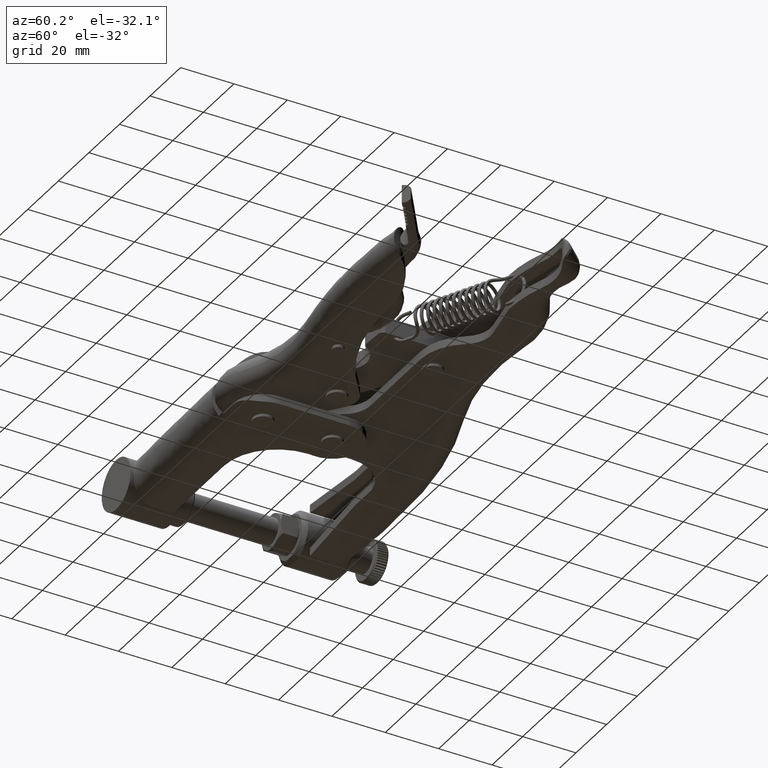
[diagram: clean part render]
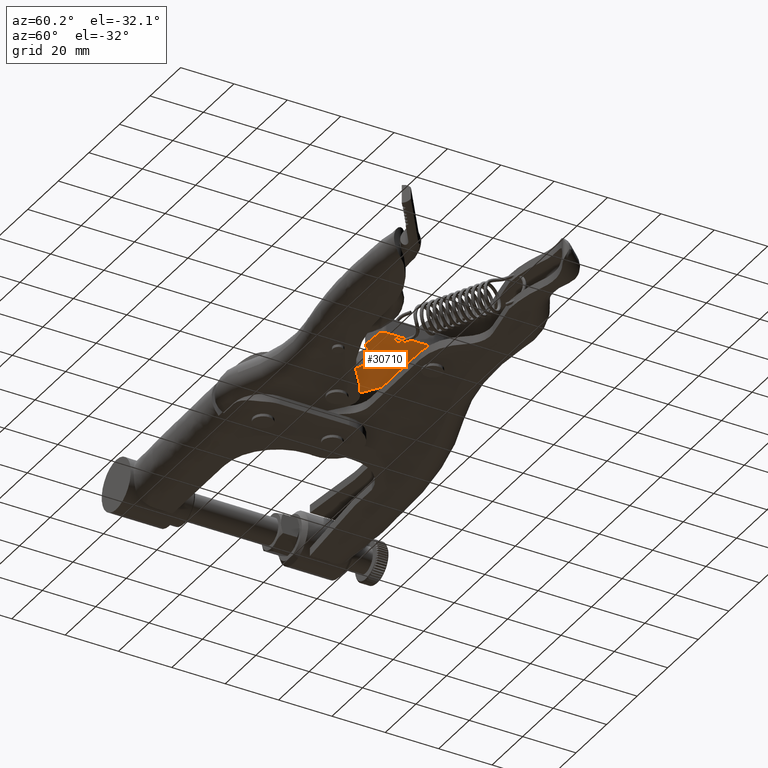
[diagram: same view with one face highlighted and labeled with its STEP entity id]
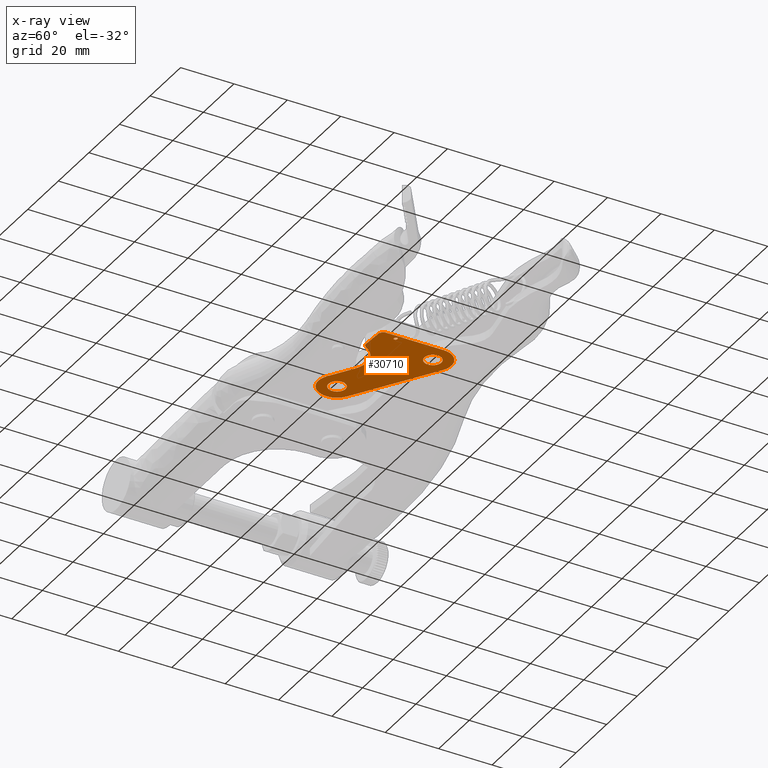
[diagram: x-ray of the same camera — body ghosted, the highlighted face saturated]
A machine part, auxiliary view. The second image highlights one B-rep face of the part: STEP entity #30710.
The next image is the same camera in x-ray: the body ghosted, the highlighted face saturated — about 0% of this face is hidden behind the body in this view.
In plain terms, the highlighted planar face has unit normal (0, -0, 1).
Its self-contained STEP definition (entity closure, byte-faithful):
#353 = EDGE_CURVE ( 'NONE', #10189, #1628, #16310, .T. ) ;
#512 = FACE_BOUND ( 'NONE', #18957, .T. ) ;
#554 = CARTESIAN_POINT ( 'NONE',  ( 47.74930561932976800, -14.73666896881992700, -2.999999999999997800 ) ) ;
#615 = EDGE_CURVE ( 'NONE', #1628, #26622, #7031, .T. ) ;
#737 = VERTEX_POINT ( 'NONE', #19636 ) ;
#1120 = EDGE_CURVE ( 'NONE', #4505, #14626, #11932, .T. ) ;
#1323 = CARTESIAN_POINT ( 'NONE',  ( 56.08803784128576100, -7.845352811508280200, -2.999999999999999100 ) ) ;
#1628 = VERTEX_POINT ( 'NONE', #29741 ) ;
#1668 = ORIENTED_EDGE ( 'NONE', *, *, #17580, .F. ) ;
#1924 = CARTESIAN_POINT ( 'NONE',  ( 55.69137039047979000, -7.406783459931114400, -2.999999999999998700 ) ) ;
#2299 = AXIS2_PLACEMENT_3D ( 'NONE', #19826, #5628, #22198 ) ;
#2435 = EDGE_LOOP ( 'NONE', ( #26360, #16759, #17741, #17951, #26833, #22366, #19683, #19156, #25405, #29442, #17783 ) ) ;
#2580 = EDGE_CURVE ( 'NONE', #23087, #10189, #18468, .T. ) ;
#2998 = LINE ( 'NONE', #10767, #14828 ) ;
#3656 = DIRECTION ( 'NONE',  ( -0.8400233805133321400, -0.5425502006182965100, 1.600337199513109700E-016 ) ) ;
#3696 = CARTESIAN_POINT ( 'NONE',  ( 56.04006666863585200, -8.108467644996125000, -2.999999999999999100 ) ) ;
#3907 = ORIENTED_EDGE ( 'NONE', *, *, #28201, .T. ) ;
#4215 = EDGE_LOOP ( 'NONE', ( #22375, #21752 ) ) ;
#4226 = CARTESIAN_POINT ( 'NONE',  ( 54.94183673234290700, -14.37767087287276400, -3.000000000000000000 ) ) ;
#4311 = CARTESIAN_POINT ( 'NONE',  ( 55.93099309033259900, -7.528070872549034400, -2.999999999999999600 ) ) ;
#4462 = CARTESIAN_POINT ( 'NONE',  ( 45.87903994977526900, -13.66926377039565900, -2.999999999999996900 ) ) ;
#4505 = VERTEX_POINT ( 'NONE', #12548 ) ;
#4561 = DIRECTION ( 'NONE',  ( -3.365464950932093500E-016, 2.261047999189759900E-016, -1.000000000000000000 ) ) ;
#4983 = VERTEX_POINT ( 'NONE', #6632 ) ;
#5628 = DIRECTION ( 'NONE',  ( 3.365464950932093500E-016, -2.261047999189759900E-016, 1.000000000000000000 ) ) ;
#6001 = CARTESIAN_POINT ( 'NONE',  ( 50.00000000000006400, 9.000000000000007100, -2.999999999999995600 ) ) ;
#6046 = CARTESIAN_POINT ( 'NONE',  ( 55.77525910671715800, -8.467977552843327900, -2.999999999999998200 ) ) ;
#6080 = VERTEX_POINT ( 'NONE', #29589 ) ;
#6205 = CIRCLE ( 'NONE', #2299, 3.200000000000001500 ) ;
#6567 = CARTESIAN_POINT ( 'NONE',  ( 54.64377548583110700, -8.264806347167434500, -2.999999999999997800 ) ) ;
#6632 = CARTESIAN_POINT ( 'NONE',  ( 56.94681464648077500, -12.37990965963003400, -3.000000000000000400 ) ) ;
#6664 = CARTESIAN_POINT ( 'NONE',  ( 56.03467431464443400, -7.673614474005279200, -2.999999999999998700 ) ) ;
#6789 = FACE_OUTER_BOUND ( 'NONE', #2435, .T. ) ;
#6980 = DIRECTION ( 'NONE',  ( 3.365464950932093500E-016, -2.261047999189759900E-016, 1.000000000000000000 ) ) ;
#7031 = CIRCLE ( 'NONE', #13992, 9.000000000000067500 ) ;
#7921 = CARTESIAN_POINT ( 'NONE',  ( 47.64960448671551800, -12.73915559360677100, -2.999999999999997300 ) ) ;
#8071 = CIRCLE ( 'NONE', #8201, 1.999999999999998900 ) ;
#8201 = AXIS2_PLACEMENT_3D ( 'NONE', #7921, #24513, #10302 ) ;
#8390 = DIRECTION ( 'NONE',  ( 1.000000000000000000, 0.0000000000000000000, -2.710505431213759600E-016 ) ) ;
#8434 = CARTESIAN_POINT ( 'NONE',  ( 55.27974950392076900, -8.669937496578327800, -2.999999999999998200 ) ) ;
#8488 = AXIS2_PLACEMENT_3D ( 'NONE', #22959, #8755, #25358 ) ;
#8755 = DIRECTION ( 'NONE',  ( 3.365464950932093500E-016, -2.261047999189759900E-016, 1.000000000000000000 ) ) ;
#8885 = ORIENTED_EDGE ( 'NONE', *, *, #1120, .F. ) ;
#8940 = CARTESIAN_POINT ( 'NONE',  ( 54.62636189608715400, -8.174883689408995100, -2.999999999999996900 ) ) ;
#9042 = DIRECTION ( 'NONE',  ( 0.002488638461392578300, 0.9999969033345096300, 2.252665571963090500E-016 ) ) ;
#9281 = DIRECTION ( 'NONE',  ( 3.365464950932093500E-016, -2.261047999189759900E-016, 1.000000000000000000 ) ) ;
#9581 = DIRECTION ( 'NONE',  ( -3.365464950932093500E-016, 2.261047999189759900E-016, -1.000000000000000000 ) ) ;
#9640 = CIRCLE ( 'NONE', #19291, 7.000000000000002700 ) ;
#10186 = VERTEX_POINT ( 'NONE', #21784 ) ;
#10189 = VERTEX_POINT ( 'NONE', #24174 ) ;
#10302 = DIRECTION ( 'NONE',  ( -0.8400233805133319200, -0.5425502006182967300, 2.168404344971010100E-016 ) ) ;
#10767 = CARTESIAN_POINT ( 'NONE',  ( 46.20214859567157400, 14.88016366359560600, -2.999999999999990700 ) ) ;
#10812 = CARTESIAN_POINT ( 'NONE',  ( 54.93089698204126100, -8.593366108244838500, -2.999999999999999100 ) ) ;
#11040 = B_SPLINE_CURVE_WITH_KNOTS ( 'NONE', 3,
 ( #13102, #15483, #1323, #17880, #3696, #20265, #6046, #22639, #8434, #25035, #10812, #27414, #13209, #29783 ),
 .UNSPECIFIED., .F., .F.,
 ( 4, 2, 2, 2, 2, 2, 4 ),
 ( 0.002103345937367963200, 0.002368459114890014900, 0.002633572292412067000, 0.003163798647456165700, 0.003694025002500264800, 0.003959138180022314000, 0.004224251357544363100 ),
 .UNSPECIFIED. ) ;
#11122 = DIRECTION ( 'NONE',  ( 3.365464950932093900E-016, -2.261047999189761400E-016, 1.000000000000000000 ) ) ;
#11135 = DIRECTION ( 'NONE',  ( 3.365464950932093500E-016, -2.261047999189759900E-016, 1.000000000000000000 ) ) ;
#11323 = CARTESIAN_POINT ( 'NONE',  ( 54.66082280025444400, -7.910384893900485700, -2.999999999999997800 ) ) ;
#11932 = B_SPLINE_CURVE_WITH_KNOTS ( 'NONE', 3,
 ( #23158, #6567, #8940, #25530, #11323, #27924, #13718, #30310, #16103, #1924, #18495, #4311, #20876, #6664 ),
 .UNSPECIFIED., .F., .F.,
 ( 4, 2, 2, 2, 2, 2, 4 ),
 ( 0.004224251357544363100, 0.004489551586989609300, 0.004754851816434856400, 0.005285452275325344500, 0.005816052734215833500, 0.006081352963661088400, 0.006346653193106342400 ),
 .UNSPECIFIED. ) ;
#11977 = AXIS2_PLACEMENT_3D ( 'NONE', #18743, #4561, #21126 ) ;
#12135 = VECTOR ( 'NONE', #30157, 1000.000000000000000 ) ;
#12548 = CARTESIAN_POINT ( 'NONE',  ( 54.68367584127175000, -8.345085758288986400, -2.999999999999998700 ) ) ;
#13102 = CARTESIAN_POINT ( 'NONE',  ( 56.03467431464443400, -7.673614474005279200, -2.999999999999998700 ) ) ;
#13209 = CARTESIAN_POINT ( 'NONE',  ( 54.72354806466653800, -8.425308567807617200, -2.999999999999999600 ) ) ;
#13552 = DIRECTION ( 'NONE',  ( -3.365464950932093500E-016, 2.261047999189759900E-016, -1.000000000000000000 ) ) ;
#13718 = CARTESIAN_POINT ( 'NONE',  ( 54.92561036455417400, -7.551364831308092100, -2.999999999999998200 ) ) ;
#13810 = DIRECTION ( 'NONE',  ( 3.365464950932093500E-016, -2.261047999189759900E-016, 1.000000000000000000 ) ) ;
#13840 = CIRCLE ( 'NONE', #8488, 3.200000000000001500 ) ;
#13992 = AXIS2_PLACEMENT_3D ( 'NONE', #23792, #9581, #26178 ) ;
#14079 = EDGE_CURVE ( 'NONE', #4983, #28029, #27210, .T. ) ;
#14191 = VERTEX_POINT ( 'NONE', #21276 ) ;
#14626 = VERTEX_POINT ( 'NONE', #17524 ) ;
#14774 = CIRCLE ( 'NONE', #11977, 2.000000000000002700 ) ;
#14828 = VECTOR ( 'NONE', #3656, 1000.000000000000000 ) ;
#15245 = CIRCLE ( 'NONE', #30557, 3.200000000000001500 ) ;
#15478 = CARTESIAN_POINT ( 'NONE',  ( 55.04652197242600000, -14.37244575792039900, -3.000000000000000000 ) ) ;
#15483 = CARTESIAN_POINT ( 'NONE',  ( 56.07406556243556400, -7.752869561865097100, -2.999999999999999100 ) ) ;
#15594 = VECTOR ( 'NONE', #25235, 1000.000000000000100 ) ;
#15686 = CARTESIAN_POINT ( 'NONE',  ( 54.94183673234290000, -14.37767087287271800, -3.000000000000000000 ) ) ;
#16103 = CARTESIAN_POINT ( 'NONE',  ( 55.42890254250542600, -7.368409928722159400, -2.999999999999998700 ) ) ;
#16104 = CARTESIAN_POINT ( 'NONE',  ( 55.88016366359298100, 12.79785140433035200, -2.999999999999994200 ) ) ;
#16309 = CARTESIAN_POINT ( 'NONE',  ( 23.72357957778722000, -10.03808653969601900, -2.999999999999989800 ) ) ;
#16310 = CIRCLE ( 'NONE', #30464, 9.000000000000067500 ) ;
#16759 = ORIENTED_EDGE ( 'NONE', *, *, #24604, .T. ) ;
#17203 = EDGE_CURVE ( 'NONE', #21270, #6080, #15245, .T. ) ;
#17524 = CARTESIAN_POINT ( 'NONE',  ( 56.03467431464443400, -7.673614474005279200, -2.999999999999998700 ) ) ;
#17551 = CARTESIAN_POINT ( 'NONE',  ( 24.32143098211489700, -15.91825020328709100, -2.999999999999990200 ) ) ;
#17580 = EDGE_CURVE ( 'NONE', #14626, #4505, #11040, .T. ) ;
#17621 = EDGE_CURVE ( 'NONE', #26012, #20979, #28961, .T. ) ;
#17741 = ORIENTED_EDGE ( 'NONE', *, *, #615, .F. ) ;
#17783 = ORIENTED_EDGE ( 'NONE', *, *, #24158, .T. ) ;
#17880 = CARTESIAN_POINT ( 'NONE',  ( 56.07018453695889800, -8.022580124843319300, -2.999999999999998200 ) ) ;
#17951 = ORIENTED_EDGE ( 'NONE', *, *, #353, .F. ) ;
#18056 = ORIENTED_EDGE ( 'NONE', *, *, #30597, .T. ) ;
#18408 = PLANE ( 'NONE',  #21216 ) ;
#18468 = LINE ( 'NONE', #23006, #12135 ) ;
#18495 = CARTESIAN_POINT ( 'NONE',  ( 55.77771746555011100, -7.434373458909134600, -2.999999999999998700 ) ) ;
#18743 = CARTESIAN_POINT ( 'NONE',  ( 54.94682083981175700, -12.37493238270724800, -3.000000000000002200 ) ) ;
#18957 = EDGE_LOOP ( 'NONE', ( #18056, #3907 ) ) ;
#19114 = AXIS2_PLACEMENT_3D ( 'NONE', #25371, #11135, #27744 ) ;
#19156 = ORIENTED_EDGE ( 'NONE', *, *, #22473, .F. ) ;
#19291 = AXIS2_PLACEMENT_3D ( 'NONE', #21178, #6980, #23559 ) ;
#19636 = CARTESIAN_POINT ( 'NONE',  ( 46.80000000000006100, 9.000000000000007100, -2.999999999999994700 ) ) ;
#19683 = ORIENTED_EDGE ( 'NONE', *, *, #21779, .F. ) ;
#19826 = CARTESIAN_POINT ( 'NONE',  ( 20.52357957778721700, -10.03808653969601900, -2.999999999999988900 ) ) ;
#20265 = CARTESIAN_POINT ( 'NONE',  ( 55.91186988155784100, -8.341241883703391500, -2.999999999999999600 ) ) ;
#20588 = AXIS2_PLACEMENT_3D ( 'NONE', #6001, #22593, #8390 ) ;
#20876 = CARTESIAN_POINT ( 'NONE',  ( 55.99525527416081900, -7.594303467324133200, -2.999999999999998200 ) ) ;
#20979 = VERTEX_POINT ( 'NONE', #15478 ) ;
#21126 = DIRECTION ( 'NONE',  ( -0.8400233805133338100, -0.5425502006182939500, 2.168404344971005900E-016 ) ) ;
#21178 = CARTESIAN_POINT ( 'NONE',  ( 49.99999999999965900, 9.000000000002275500, -2.999999999999993300 ) ) ;
#21202 = VERTEX_POINT ( 'NONE', #16104 ) ;
#21216 = AXIS2_PLACEMENT_3D ( 'NONE', #4226, #11122, #23175 ) ;
#21270 = VERTEX_POINT ( 'NONE', #16309 ) ;
#21276 = CARTESIAN_POINT ( 'NONE',  ( 46.20214859567157400, 14.88016366359560600, -2.999999999999990700 ) ) ;
#21375 = EDGE_CURVE ( 'NONE', #28029, #21202, #9640, .T. ) ;
#21643 = VECTOR ( 'NONE', #9042, 999.9999999999998900 ) ;
#21752 = ORIENTED_EDGE ( 'NONE', *, *, #25182, .T. ) ;
#21779 = EDGE_CURVE ( 'NONE', #14191, #10186, #2998, .T. ) ;
#21784 = CARTESIAN_POINT ( 'NONE',  ( 16.72572817345873700, -4.157922876100427900, -2.999999999999984900 ) ) ;
#22198 = DIRECTION ( 'NONE',  ( 1.000000000000000000, 0.0000000000000000000, -2.710505431213759600E-016 ) ) ;
#22366 = ORIENTED_EDGE ( 'NONE', *, *, #29812, .F. ) ;
#22375 = ORIENTED_EDGE ( 'NONE', *, *, #17203, .T. ) ;
#22473 = EDGE_CURVE ( 'NONE', #21202, #14191, #25578, .T. ) ;
#22593 = DIRECTION ( 'NONE',  ( 3.365464950932093500E-016, -2.261047999189759900E-016, 1.000000000000000000 ) ) ;
#22639 = CARTESIAN_POINT ( 'NONE',  ( 55.46222331067160400, -8.631234747194522300, -2.999999999999999100 ) ) ;
#22959 = CARTESIAN_POINT ( 'NONE',  ( 50.00000000000006400, 9.000000000000007100, -2.999999999999995600 ) ) ;
#23006 = CARTESIAN_POINT ( 'NONE',  ( 24.32143098211489700, -15.91825020328709100, -2.999999999999990200 ) ) ;
#23087 = VERTEX_POINT ( 'NONE', #17551 ) ;
#23158 = CARTESIAN_POINT ( 'NONE',  ( 54.68367584127175000, -8.345085758288986400, -2.999999999999998700 ) ) ;
#23175 = DIRECTION ( 'NONE',  ( -0.8400233805133320300, -0.5425502006182964000, 1.600337199513109400E-016 ) ) ;
#23486 = CARTESIAN_POINT ( 'NONE',  ( 20.52357957778721700, -10.03808653969601900, -2.999999999999988900 ) ) ;
#23559 = DIRECTION ( 'NONE',  ( -0.8400233805133320300, -0.5425502006182965100, 1.858632295689435400E-016 ) ) ;
#23625 = CARTESIAN_POINT ( 'NONE',  ( 53.20000000000006700, 9.000000000000007100, -2.999999999999996400 ) ) ;
#23792 = CARTESIAN_POINT ( 'NONE',  ( 37.91149953354407400, -17.85475056594568200, -2.999999999999995100 ) ) ;
#24158 = EDGE_CURVE ( 'NONE', #4983, #20979, #14774, .T. ) ;
#24174 = CARTESIAN_POINT ( 'NONE',  ( 33.02854772797937200, -10.29454014132563900, -2.999999999999992000 ) ) ;
#24291 = CIRCLE ( 'NONE', #20588, 3.200000000000001500 ) ;
#24513 = DIRECTION ( 'NONE',  ( -3.365464950932093500E-016, 2.261047999189759900E-016, -1.000000000000000000 ) ) ;
#24604 = EDGE_CURVE ( 'NONE', #26012, #26622, #8071, .T. ) ;
#24961 = FACE_BOUND ( 'NONE', #4215, .T. ) ;
#25035 = CARTESIAN_POINT ( 'NONE',  ( 55.01648755163075300, -8.625803061720636900, -2.999999999999999100 ) ) ;
#25182 = EDGE_CURVE ( 'NONE', #6080, #21270, #6205, .T. ) ;
#25235 = DIRECTION ( 'NONE',  ( 0.9987566876065757700, 0.04985056630712258300, -3.248566103441767900E-016 ) ) ;
#25358 = DIRECTION ( 'NONE',  ( 1.000000000000000000, 0.0000000000000000000, -2.710505431213759600E-016 ) ) ;
#25371 = CARTESIAN_POINT ( 'NONE',  ( 49.99999999999965900, 9.000000000002275500, -2.999999999999993300 ) ) ;
#25405 = ORIENTED_EDGE ( 'NONE', *, *, #21375, .F. ) ;
#25530 = CARTESIAN_POINT ( 'NONE',  ( 54.63505146514871300, -7.997772829490884300, -2.999999999999997800 ) ) ;
#25578 = CIRCLE ( 'NONE', #19114, 7.000000000000002700 ) ;
#25629 = CARTESIAN_POINT ( 'NONE',  ( 56.99997832334122400, 8.982579530772522200, -2.999999999999995100 ) ) ;
#25630 = EDGE_LOOP ( 'NONE', ( #1668, #8885 ) ) ;
#25707 = FACE_BOUND ( 'NONE', #25630, .T. ) ;
#25870 = DIRECTION ( 'NONE',  ( 1.000000000000000000, 0.0000000000000000000, -2.710505431213759600E-016 ) ) ;
#26012 = VERTEX_POINT ( 'NONE', #554 ) ;
#26178 = DIRECTION ( 'NONE',  ( -0.8400233805133320300, -0.5425502006182965100, 1.445602896647328300E-016 ) ) ;
#26360 = ORIENTED_EDGE ( 'NONE', *, *, #17621, .F. ) ;
#26622 = VERTEX_POINT ( 'NONE', #4462 ) ;
#26833 = ORIENTED_EDGE ( 'NONE', *, *, #2580, .F. ) ;
#27210 = LINE ( 'NONE', #25629, #21643 ) ;
#27414 = CARTESIAN_POINT ( 'NONE',  ( 54.78507113184134900, -8.493774728260648400, -3.000000000000000900 ) ) ;
#27744 = DIRECTION ( 'NONE',  ( -0.8400233805133320300, -0.5425502006182965100, 1.858632295689435400E-016 ) ) ;
#27753 = CARTESIAN_POINT ( 'NONE',  ( 37.91149953354407400, -17.85475056594568200, -2.999999999999995100 ) ) ;
#27924 = CARTESIAN_POINT ( 'NONE',  ( 54.78467375531330700, -7.673714168762500300, -2.999999999999999100 ) ) ;
#28018 = CARTESIAN_POINT ( 'NONE',  ( 20.52357957778681900, -10.03808653969375800, -2.999999999999987600 ) ) ;
#28029 = VERTEX_POINT ( 'NONE', #29233 ) ;
#28201 = EDGE_CURVE ( 'NONE', #737, #28583, #24291, .T. ) ;
#28583 = VERTEX_POINT ( 'NONE', #23625 ) ;
#28961 = LINE ( 'NONE', #15686, #15594 ) ;
#29233 = CARTESIAN_POINT ( 'NONE',  ( 56.99997832334122400, 8.982579530772524000, -2.999999999999995100 ) ) ;
#29331 = AXIS2_PLACEMENT_3D ( 'NONE', #28018, #13810, #30398 ) ;
#29442 = ORIENTED_EDGE ( 'NONE', *, *, #14079, .F. ) ;
#29589 = CARTESIAN_POINT ( 'NONE',  ( 17.32357957778721800, -10.03808653969601900, -2.999999999999988000 ) ) ;
#29741 = CARTESIAN_POINT ( 'NONE',  ( 45.47170995816411900, -12.97179876038098100, -2.999999999999996400 ) ) ;
#29783 = CARTESIAN_POINT ( 'NONE',  ( 54.68367584127175000, -8.345085758288986400, -2.999999999999998700 ) ) ;
#29812 = EDGE_CURVE ( 'NONE', #10186, #23087, #30549, .T. ) ;
#30137 = DIRECTION ( 'NONE',  ( -0.8400233805133320300, -0.5425502006182965100, 1.445602896647328300E-016 ) ) ;
#30157 = DIRECTION ( 'NONE',  ( 0.8400233805133319200, 0.5425502006182966200, -1.600337199513108900E-016 ) ) ;
#30310 = CARTESIAN_POINT ( 'NONE',  ( 55.24812313021614300, -7.399570885466085100, -2.999999999999999100 ) ) ;
#30398 = DIRECTION ( 'NONE',  ( -0.8400233805133320300, -0.5425502006182965100, 1.858632295689434400E-016 ) ) ;
#30464 = AXIS2_PLACEMENT_3D ( 'NONE', #27753, #13552, #30137 ) ;
#30549 = CIRCLE ( 'NONE', #29331, 7.000000000000007100 ) ;
#30557 = AXIS2_PLACEMENT_3D ( 'NONE', #23486, #9281, #25870 ) ;
#30597 = EDGE_CURVE ( 'NONE', #28583, #737, #13840, .T. ) ;
#30710 = ADVANCED_FACE ( 'NONE', ( #512, #25707, #24961, #6789 ), #18408, .F. ) ;